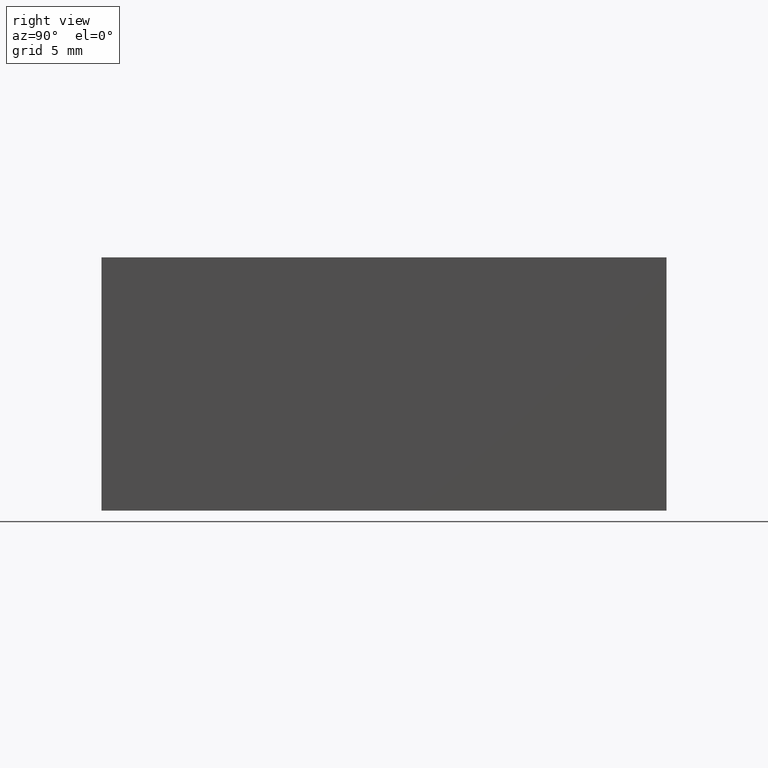
[diagram: clean part render]
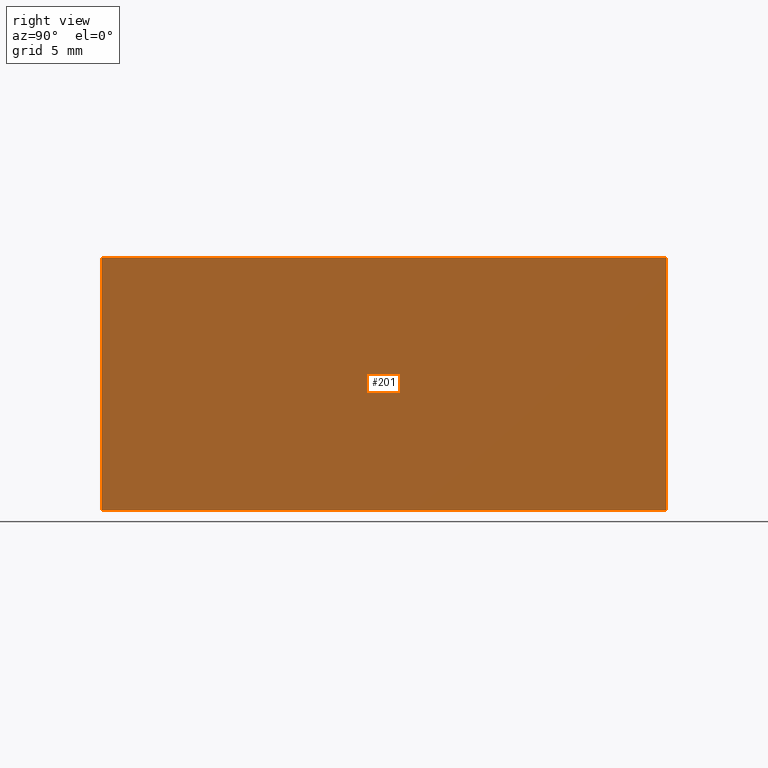
[diagram: same view with one face highlighted and labeled with its STEP entity id]
A machine part, right view. The second image highlights one B-rep face of the part: STEP entity #201.
In plain terms, the highlighted planar face has unit normal (-1, 0, 0).
Its self-contained STEP definition (entity closure, byte-faithful):
#30=FACE_OUTER_BOUND('',#42,.T.);
#42=EDGE_LOOP('',(#145,#146,#147,#148));
#58=LINE('',#294,#78);
#60=LINE('',#300,#80);
#61=LINE('',#302,#81);
#62=LINE('',#303,#82);
#78=VECTOR('',#236,13.);
#80=VECTOR('',#242,28.999999999884);
#81=VECTOR('',#243,13.);
#82=VECTOR('',#244,28.999999999884);
#98=VERTEX_POINT('',#291);
#99=VERTEX_POINT('',#293);
#101=VERTEX_POINT('',#299);
#102=VERTEX_POINT('',#301);
#116=EDGE_CURVE('',#99,#98,#58,.T.);
#119=EDGE_CURVE('',#98,#101,#60,.T.);
#120=EDGE_CURVE('',#102,#101,#61,.T.);
#121=EDGE_CURVE('',#99,#102,#62,.T.);
#145=ORIENTED_EDGE('',*,*,#116,.T.);
#146=ORIENTED_EDGE('',*,*,#119,.T.);
#147=ORIENTED_EDGE('',*,*,#120,.F.);
#148=ORIENTED_EDGE('',*,*,#121,.F.);
#193=PLANE('',#215);
#201=ADVANCED_FACE('',(#30),#193,.F.);
#215=AXIS2_PLACEMENT_3D('',#298,#240,#241);
#236=DIRECTION('',(0.,0.,-1.));
#240=DIRECTION('center_axis',(-1.,0.,0.));
#241=DIRECTION('ref_axis',(0.,0.,1.));
#242=DIRECTION('',(0.,1.,0.));
#243=DIRECTION('',(0.,0.,-1.));
#244=DIRECTION('',(0.,1.,0.));
#291=CARTESIAN_POINT('',(6.99999999997203,-6.99999999997226,0.));
#293=CARTESIAN_POINT('',(6.99999999997203,-6.99999999997226,13.));
#294=CARTESIAN_POINT('',(6.99999999997203,-6.99999999997226,13.));
#298=CARTESIAN_POINT('Origin',(6.99999999997203,-6.99999999997226,13.));
#299=CARTESIAN_POINT('',(6.99999999997203,21.9999999999118,0.));
#300=CARTESIAN_POINT('',(6.99999999997203,-6.99999999997226,0.));
#301=CARTESIAN_POINT('',(6.99999999997203,21.9999999999118,13.));
#302=CARTESIAN_POINT('',(6.99999999997203,21.9999999999118,13.));
#303=CARTESIAN_POINT('',(6.99999999997203,-6.99999999997226,13.));